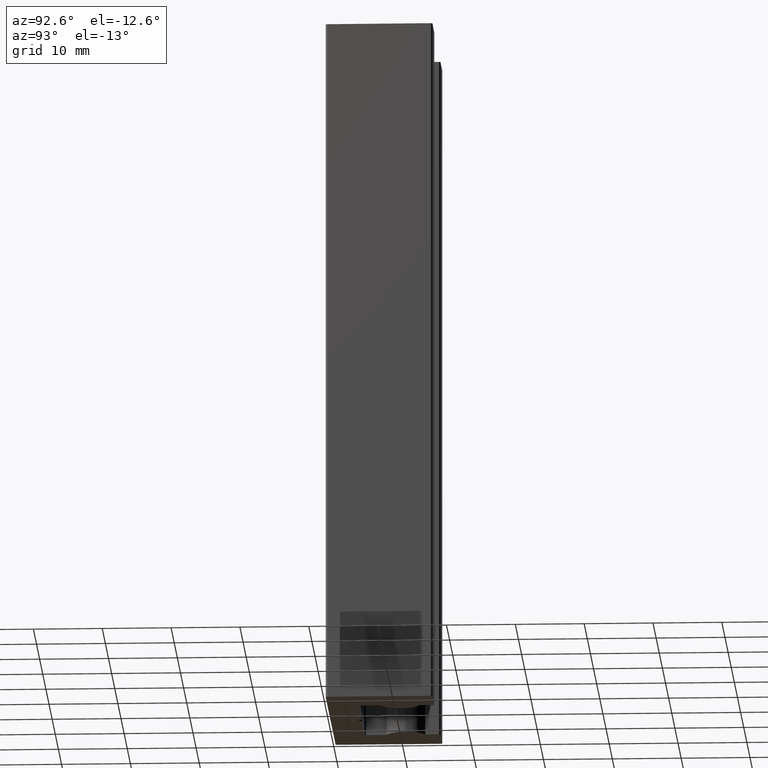
[diagram: clean part render]
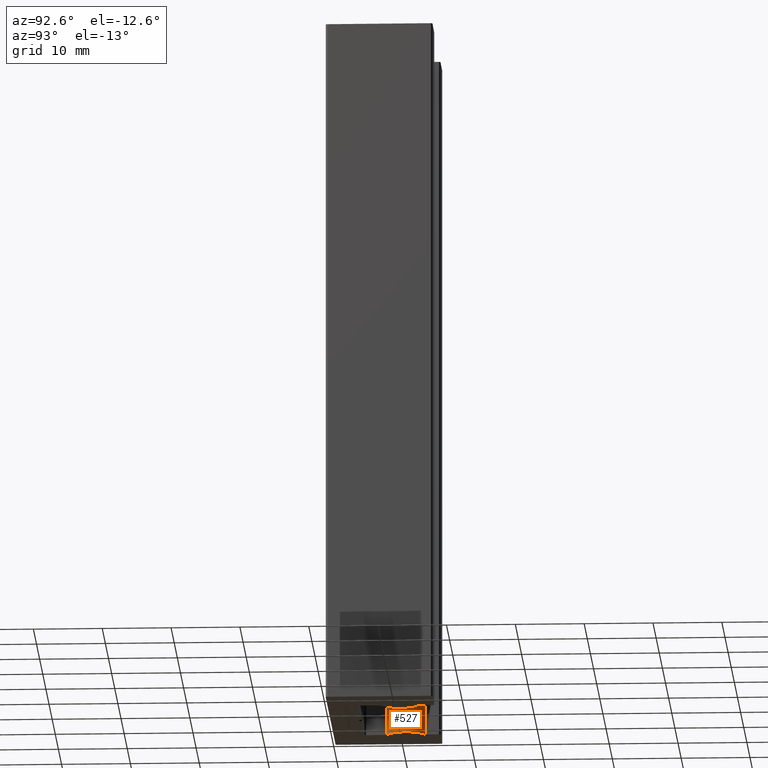
[diagram: same view with one face highlighted and labeled with its STEP entity id]
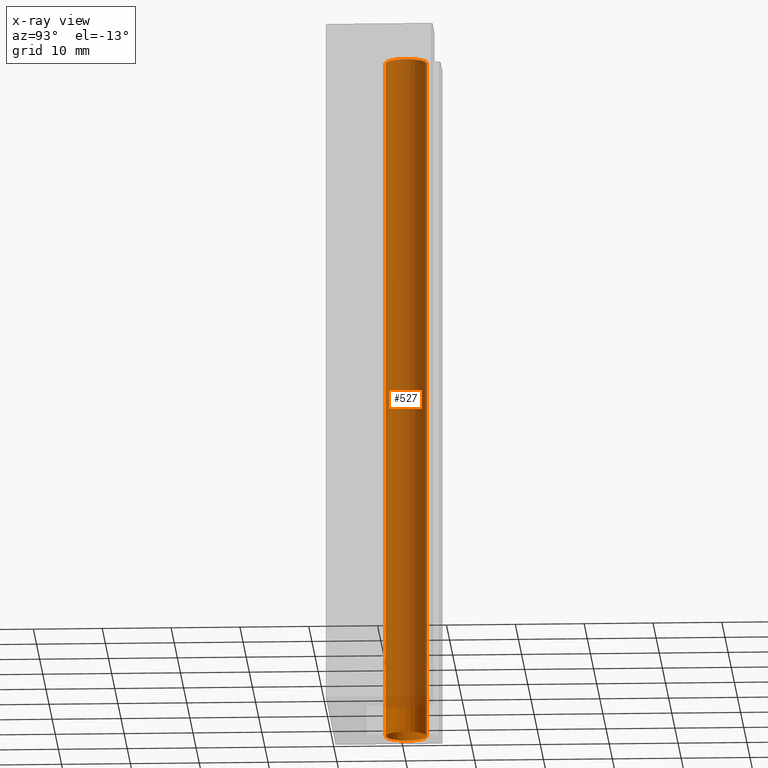
[diagram: x-ray of the same camera — body ghosted, the highlighted face saturated]
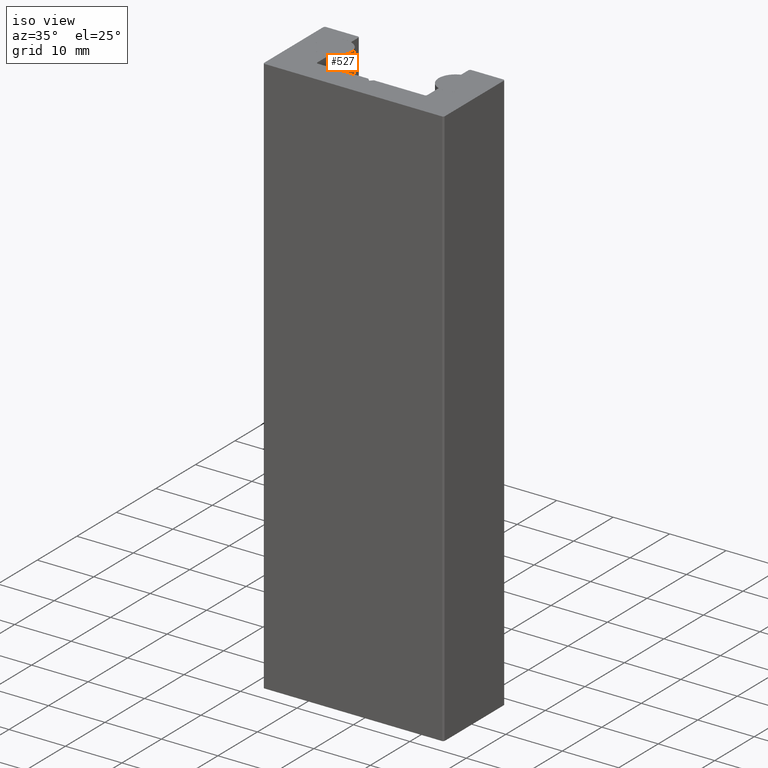
[diagram: same view with one face highlighted and labeled with its STEP entity id]
A machine part, auxiliary view. The second image highlights one B-rep face of the part: STEP entity #527.
The next image is the same camera in x-ray: the body ghosted, the highlighted face saturated — about 95% of this face is hidden behind the body in this view.
A second angle (iso view) of the same face is appended — the face is thin or edge-on in the first view.
In plain terms, the highlighted cylindrical surface (bore or boss wall) has radius 3 mm, axis along (0, 0, 1).
Its self-contained STEP definition (entity closure, byte-faithful):
#74=FACE_OUTER_BOUND('',#102,.T.);
#102=EDGE_LOOP('',(#485,#486,#487,#488));
#153=LINE('',#960,#203);
#203=VECTOR('',#802,3.);
#224=CIRCLE('',#642,3.);
#225=CIRCLE('',#644,3.);
#272=VERTEX_POINT('',#955);
#273=VERTEX_POINT('',#958);
#343=EDGE_CURVE('',#272,#272,#224,.T.);
#344=EDGE_CURVE('',#273,#273,#225,.T.);
#345=EDGE_CURVE('',#273,#272,#153,.T.);
#485=ORIENTED_EDGE('',*,*,#344,.T.);
#486=ORIENTED_EDGE('',*,*,#345,.T.);
#487=ORIENTED_EDGE('',*,*,#343,.T.);
#488=ORIENTED_EDGE('',*,*,#345,.F.);
#500=CYLINDRICAL_SURFACE('',#643,3.);
#527=ADVANCED_FACE('',(#74),#500,.T.);
#642=AXIS2_PLACEMENT_3D('',#956,#796,#797);
#643=AXIS2_PLACEMENT_3D('',#957,#798,#799);
#644=AXIS2_PLACEMENT_3D('',#959,#800,#801);
#796=DIRECTION('center_axis',(0.,0.,1.));
#797=DIRECTION('ref_axis',(-1.,0.,0.));
#798=DIRECTION('center_axis',(0.,0.,1.));
#799=DIRECTION('ref_axis',(-1.,0.,0.));
#800=DIRECTION('center_axis',(0.,0.,-1.));
#801=DIRECTION('ref_axis',(-1.,0.,0.));
#802=DIRECTION('',(0.,0.,-1.));
#955=CARTESIAN_POINT('',(3.,3.67394039744206E-16,-50.));
#956=CARTESIAN_POINT('Origin',(0.,0.,-50.));
#957=CARTESIAN_POINT('Origin',(0.,0.,0.));
#958=CARTESIAN_POINT('',(3.,3.67394039744206E-16,50.));
#959=CARTESIAN_POINT('Origin',(0.,0.,50.));
#960=CARTESIAN_POINT('',(3.,3.67394039744206E-16,0.));